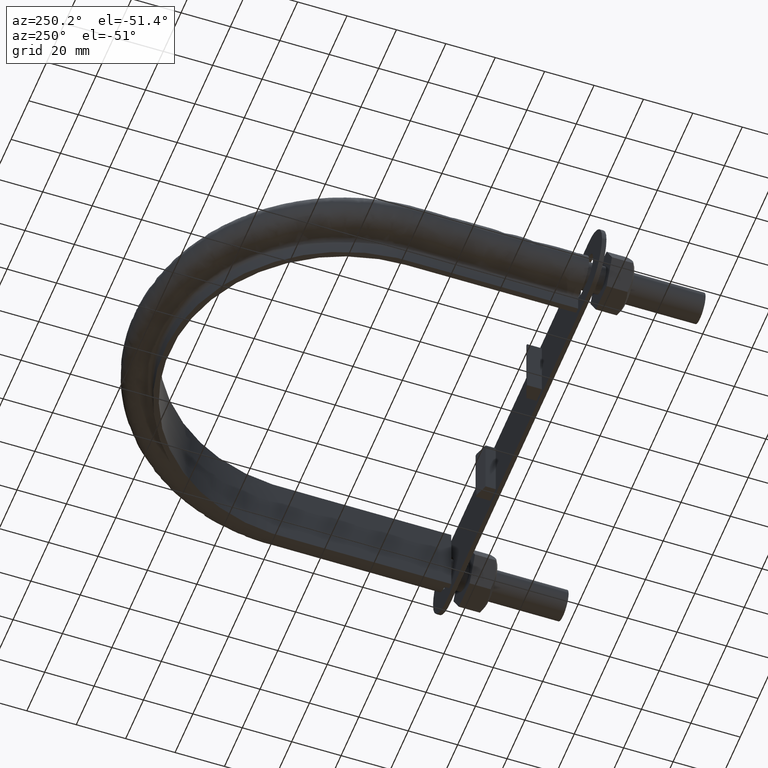
[diagram: clean part render]
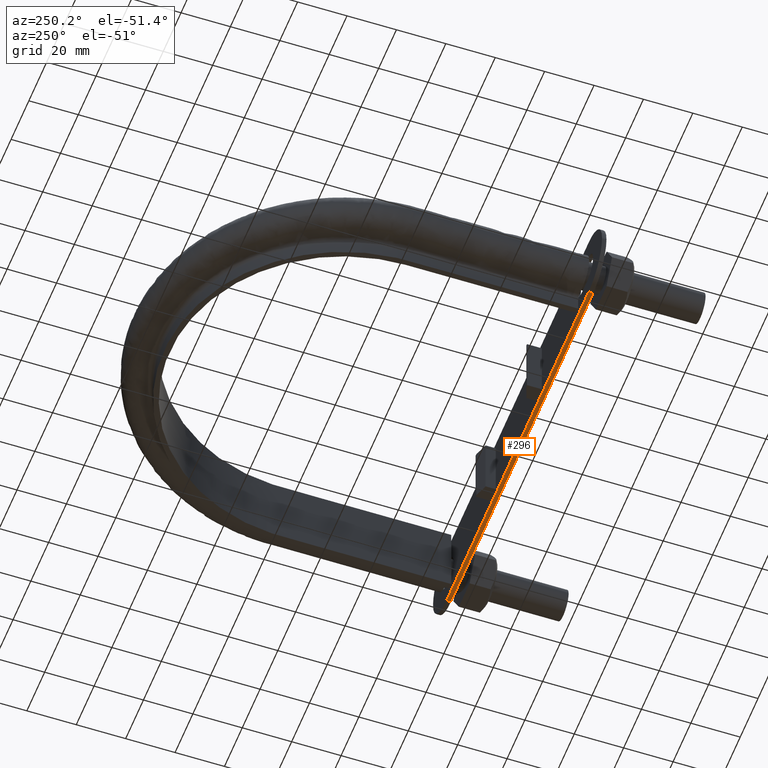
[diagram: same view with one face highlighted and labeled with its STEP entity id]
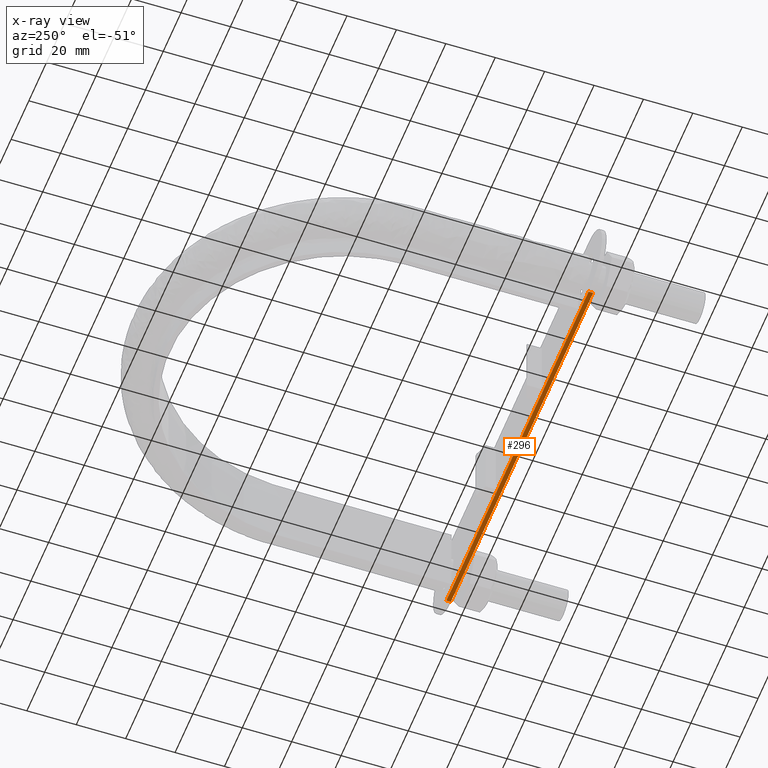
[diagram: x-ray of the same camera — body ghosted, the highlighted face saturated]
A machine part, auxiliary view. The second image highlights one B-rep face of the part: STEP entity #296.
The next image is the same camera in x-ray: the body ghosted, the highlighted face saturated — about 0% of this face is hidden behind the body in this view.
In plain terms, the highlighted planar face has unit normal (-0, 0, -1).
Its self-contained STEP definition (entity closure, byte-faithful):
#296 = ADVANCED_FACE( '', ( #422 ), #423, .T. );
#422 = FACE_OUTER_BOUND( '', #1455, .T. );
#423 = PLANE( '', #1456 );
#1455 = EDGE_LOOP( '', ( #1809, #1810, #1811, #1812 ) );
#1456 = AXIS2_PLACEMENT_3D( '', #1813, #1814, #1815 );
#1809 = ORIENTED_EDGE( '', *, *, #2185, .F. );
#1810 = ORIENTED_EDGE( '', *, *, #2233, .F. );
#1811 = ORIENTED_EDGE( '', *, *, #2222, .T. );
#1812 = ORIENTED_EDGE( '', *, *, #2232, .T. );
#1813 = CARTESIAN_POINT( '', ( 78.4499999747885, 44.9099999997799, -15.0000001318295 ) );
#1814 = DIRECTION( '', ( -1.68042474379972E-009, 1.04599657885938E-013, -1.00000000000000 ) );
#1815 = DIRECTION( '', ( 1.00000000000000, -2.82548111446733E-012, -1.68042474379972E-009 ) );
#2185 = EDGE_CURVE( '', #2394, #2396, #2397, .T. );
#2222 = EDGE_CURVE( '', #2462, #2460, #2463, .T. );
#2232 = EDGE_CURVE( '', #2460, #2396, #2479, .T. );
#2233 = EDGE_CURVE( '', #2462, #2394, #2480, .T. );
#2394 = VERTEX_POINT( '', #2889 );
#2396 = VERTEX_POINT( '', #2891 );
#2397 = LINE( '', #2892, #2893 );
#2460 = VERTEX_POINT( '', #2985 );
#2462 = VERTEX_POINT( '', #2987 );
#2463 = LINE( '', #2988, #2989 );
#2479 = LINE( '', #3009, #3010 );
#2480 = LINE( '', #3011, #3012 );
#2889 = CARTESIAN_POINT( '', ( 78.4499999747936, 46.7099999997799, -15.0000001318293 ) );
#2891 = CARTESIAN_POINT( '', ( -81.5500000252064, 46.7100000002320, -14.9999998629614 ) );
#2892 = CARTESIAN_POINT( '', ( 78.4499999747936, 46.7099999997799, -15.0000001318293 ) );
#2893 = VECTOR( '', #3363, 1000.00000000000 );
#2985 = CARTESIAN_POINT( '', ( -81.5500000252115, 44.9100000002320, -14.9999998629616 ) );
#2987 = CARTESIAN_POINT( '', ( 78.4499999747886, 44.9099999997799, -15.0000001318295 ) );
#2988 = CARTESIAN_POINT( '', ( 78.4499999747885, 44.9099999997799, -15.0000001318295 ) );
#2989 = VECTOR( '', #3414, 1000.00000000000 );
#3009 = CARTESIAN_POINT( '', ( -81.5500000252115, 44.9100000002320, -14.9999998629616 ) );
#3010 = VECTOR( '', #3434, 1000.00000000000 );
#3011 = CARTESIAN_POINT( '', ( 78.4499999747886, 44.9099999997799, -15.0000001318295 ) );
#3012 = VECTOR( '', #3435, 1000.00000000000 );
#3363 = DIRECTION( '', ( -1.00000000000000, 2.82548111446733E-012, 1.68042474379972E-009 ) );
#3414 = DIRECTION( '', ( -1.00000000000000, 2.82548111446733E-012, 1.68042474379972E-009 ) );
#3434 = DIRECTION( '', ( 2.82548111464310E-012, 1.00000000000000, 1.04599653137929E-013 ) );
#3435 = DIRECTION( '', ( 2.82548111464310E-012, 1.00000000000000, 1.04599653137929E-013 ) );